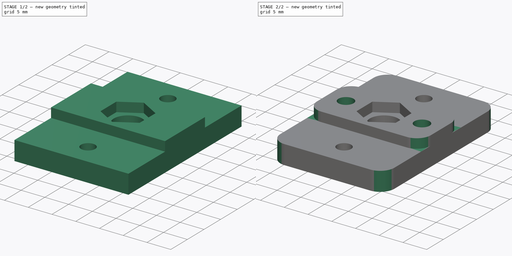
[diagram: build sequence overview — one tinted view per stage of 2, left to right]
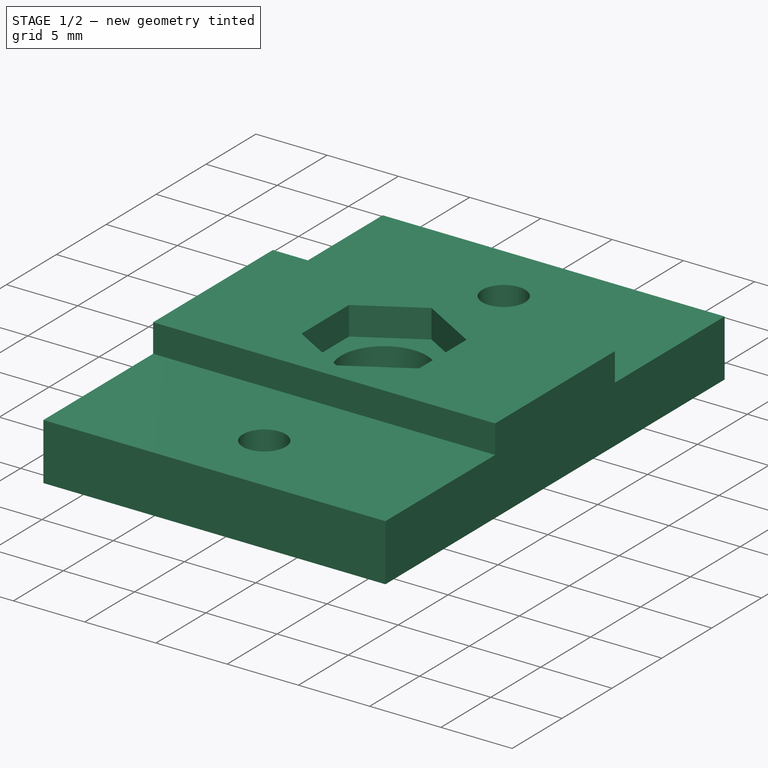
[diagram: stage 1 of 2 — iso view after this stage's code; geometry added in this stage tinted green]
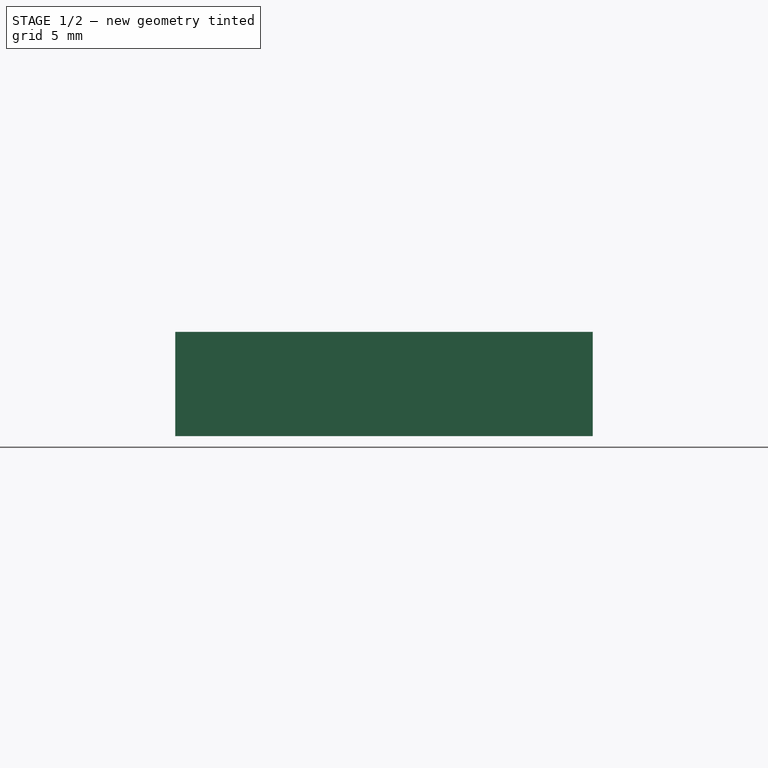
[diagram: stage 1 of 2 — front view after this stage's code; geometry added in this stage tinted green]
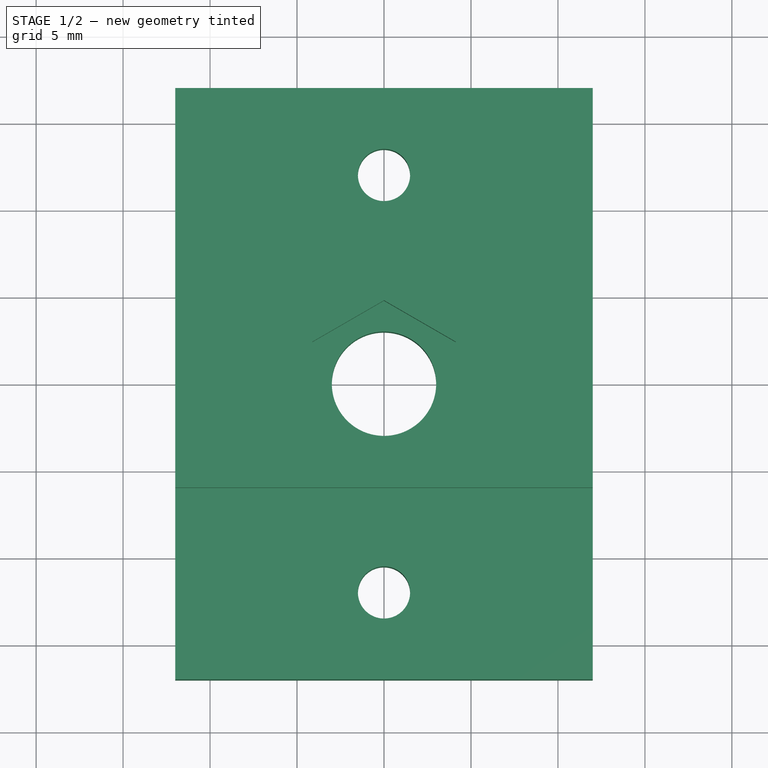
[diagram: stage 1 of 2 — top view after this stage's code; geometry added in this stage tinted green]
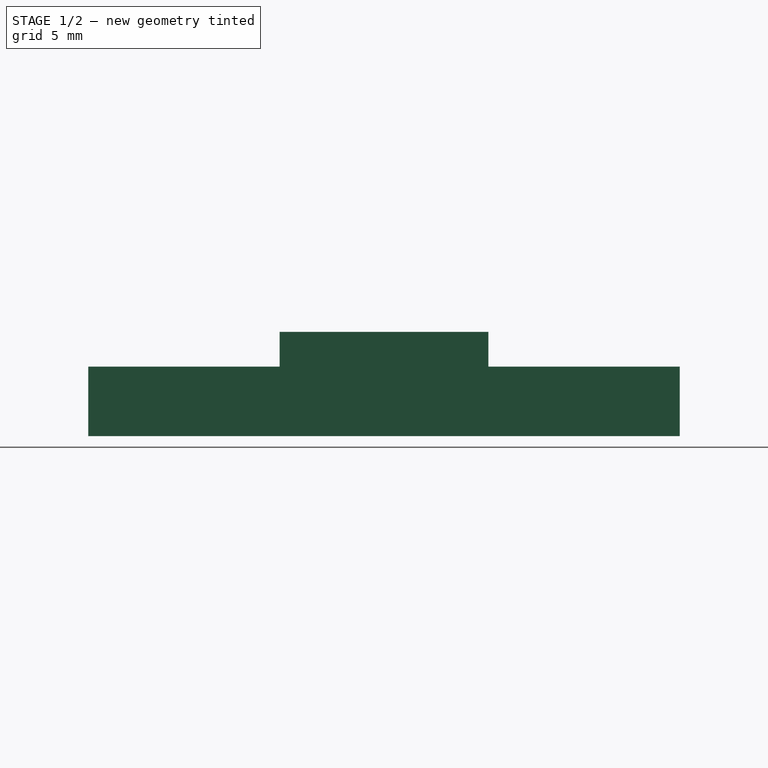
[diagram: stage 1 of 2 — right view after this stage's code; geometry added in this stage tinted green]
FCSTD DOCUMENT  (FreeCAD 0.18R14090 (Git))
Label: ZThreadedRodClip
License: All rights reserved
LicenseURL: http://en.wikipedia.org/wiki/All_rights_reserved
objects: Sketcher::SketchObject×3, PartDesign::Pad×2, PartDesign::Pocket×1, PartDesign::Fillet×1, PartDesign::Body×1, App::Part×1
note: 11 computed .brp shape members not serialized (recipe doc carries the construction recipe); baked Part::Feature solids carry a one-line shape summary decoded from their .brp

FEATURE [Sketcher::SketchObject] Sketch  label="BaseSketch"
  MapMode = 5
  Support = -> [XY_Plane001]
  sketch-geometry (7):
    g0: LineSegment StartX=-12 StartY=17 StartZ=0 EndX=12 EndY=17 EndZ=0
    g1: LineSegment StartX=12 StartY=17 StartZ=0 EndX=12 EndY=-17 EndZ=0
    g2: LineSegment StartX=12 StartY=-17 StartZ=0 EndX=-12 EndY=-17 EndZ=0
    g3: LineSegment StartX=-12 StartY=-17 StartZ=0 EndX=-12 EndY=17 EndZ=0
    g4: Circle CenterX=0 CenterY=12 CenterZ=0 NormalX=0 NormalY=0 NormalZ=1 AngleXU=0 Radius=1.5
    g5: Circle CenterX=0 CenterY=-12 CenterZ=0 NormalX=0 NormalY=0 NormalZ=1 AngleXU=0 Radius=1.5
    g6: Circle CenterX=0 CenterY=0 CenterZ=0 NormalX=0 NormalY=0 NormalZ=1 AngleXU=0 Radius=3
  constraints (17):
    c: Coincident(g0,g1)
    c: Coincident(g1,g2)
    c: Coincident(g2,g3)
    c: Coincident(g3,g0)
    c: Horizontal(g2)
    c: Vertical(g1)
    c: PointOnObject(g4,g-2)
    c: Equal(g4,g5)
    c: Symmetric(g4,g5,g-1)
    c: Distance(g4,g5) = 24
    c: Symmetric(g2,g0,g-1)
    c: Symmetric(g0,g0,g-2)
    c: Radius(g4) = 1.5
    c: Coincident(g6,g-1)
    c: Radius(g6) = 3
    c: Distance(g4,g0) = 5
    c: Distance(g2) = 24
FEATURE [PartDesign::Pad] Pad  label="BasePad"
  Length = 4
  Length2 = 100
  Profile = -> Sketch
  Reversed = true
  Type = 0
FEATURE [Sketcher::SketchObject] Sketch001  label="ScrewClipSketch"
  ExternalGeometry = -> [Sketch]
  MapMode = 5
  Support = -> [XY_Plane001]
  sketch-geometry (11):
    g0: LineSegment StartX=4.125 StartY=-2.38157 StartZ=0 EndX=4.125 EndY=2.38157 EndZ=0
    g1: LineSegment StartX=4.125 StartY=2.38157 StartZ=0 EndX=0 EndY=4.76314 EndZ=0
    g2: LineSegment StartX=0 StartY=4.76314 StartZ=0 EndX=-4.125 EndY=2.38157 EndZ=0
    g3: LineSegment StartX=-4.125 StartY=2.38157 StartZ=0 EndX=-4.125 EndY=-2.38157 EndZ=0
    g4: LineSegment StartX=-4.125 StartY=-2.38157 StartZ=0 EndX=0 EndY=-4.76314 EndZ=0
    g5: LineSegment StartX=0 StartY=-4.76314 StartZ=0 EndX=4.125 EndY=-2.38157 EndZ=0
    g6: Circle [constr] CenterX=0 CenterY=0 CenterZ=0 NormalX=0 NormalY=0 NormalZ=1 AngleXU=0 Radius=4.76314
    g7: LineSegment StartX=-12 StartY=6 StartZ=0 EndX=12 EndY=6 EndZ=0
    g8: LineSegment StartX=12 StartY=6 StartZ=0 EndX=12 EndY=-6 EndZ=0
    g9: LineSegment StartX=12 StartY=-6 StartZ=0 EndX=-12 EndY=-6 EndZ=0
    g10: LineSegment StartX=-12 StartY=-6 StartZ=0 EndX=-12 EndY=6 EndZ=0
  constraints (26):
    c: Coincident(g0,g1)
    c: Coincident(g1,g2)
    c: Coincident(g2,g3)
    c: Coincident(g3,g4)
    c: Coincident(g4,g5)
    c: Coincident(g5,g0)
    c: Equal(g0, g1-g5) x5
    c: PointOnObject(g0,g6)
    c: PointOnObject(g1,g6)
    c: PointOnObject(g2,g6)
    c: PointOnObject(g3,g6)
    c: PointOnObject(g4,g6)
    c: PointOnObject(g5,g6)
    c: Coincident(g6,g-1)
    c: Vertical(g0)
    c: Distance(g0,g2) = 8.25
    c: Coincident(g8,g9)
    c: Coincident(g9,g10)
    c: Horizontal(g9)
    c: Vertical(g8)
    c: Symmetric(g7,g9,g-1)
    c: Symmetric(g7,g7,g-2)
    c: Coincident(g7,g8)
    c: Coincident(g7,g10)
    c: PointOnObject(g7,g-3)
    c: Distance(g10) = 12
FEATURE [PartDesign::Pad] Pad001  label="ScrewClipPad"
  BaseFeature = -> Pad
  Length = 2
  Length2 = 100
  Profile = -> Sketch001
  Type = 0
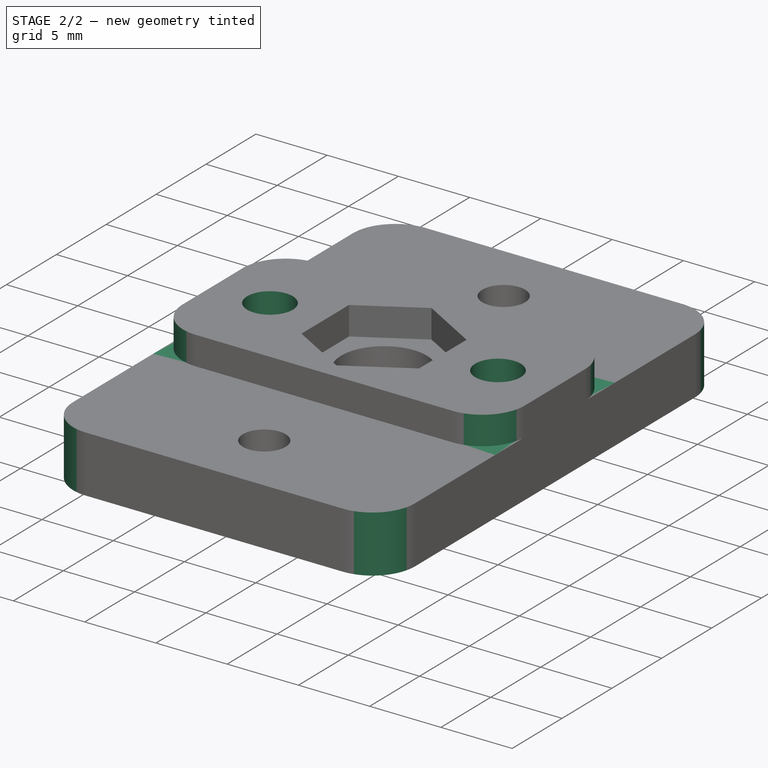
[diagram: stage 2 of 2 — iso view after this stage's code; geometry added in this stage tinted green]
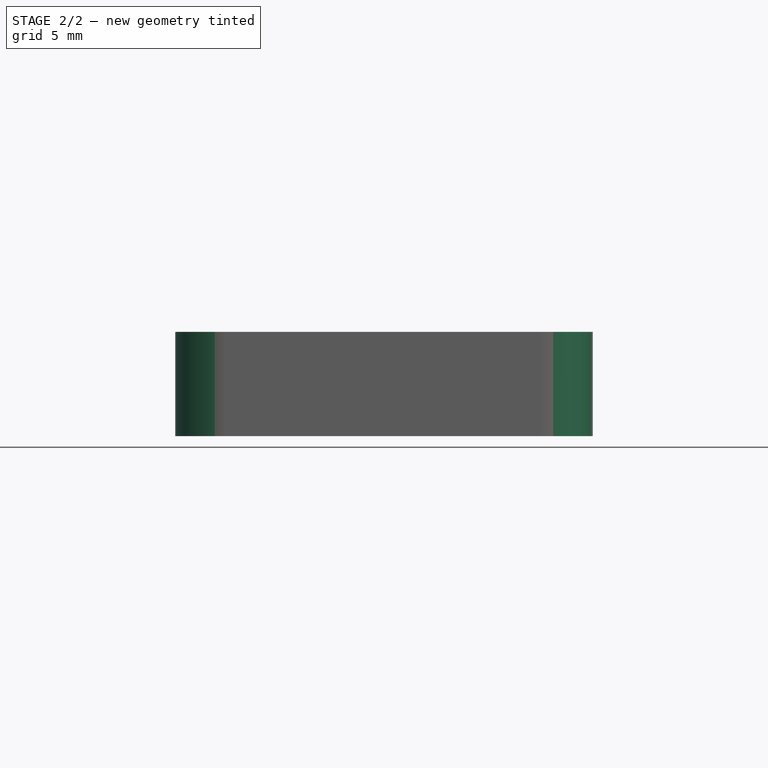
[diagram: stage 2 of 2 — front view after this stage's code; geometry added in this stage tinted green]
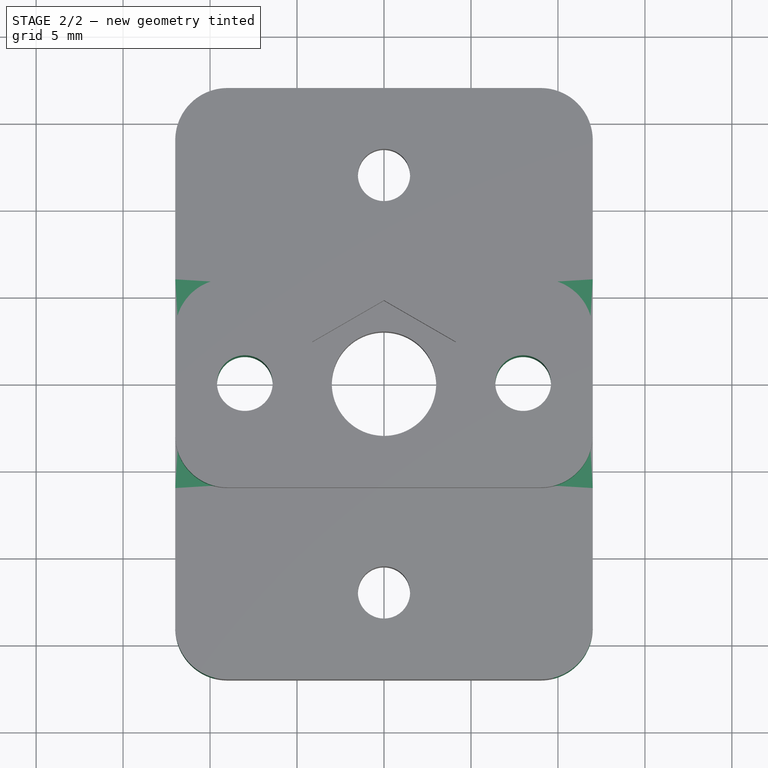
[diagram: stage 2 of 2 — top view after this stage's code; geometry added in this stage tinted green]
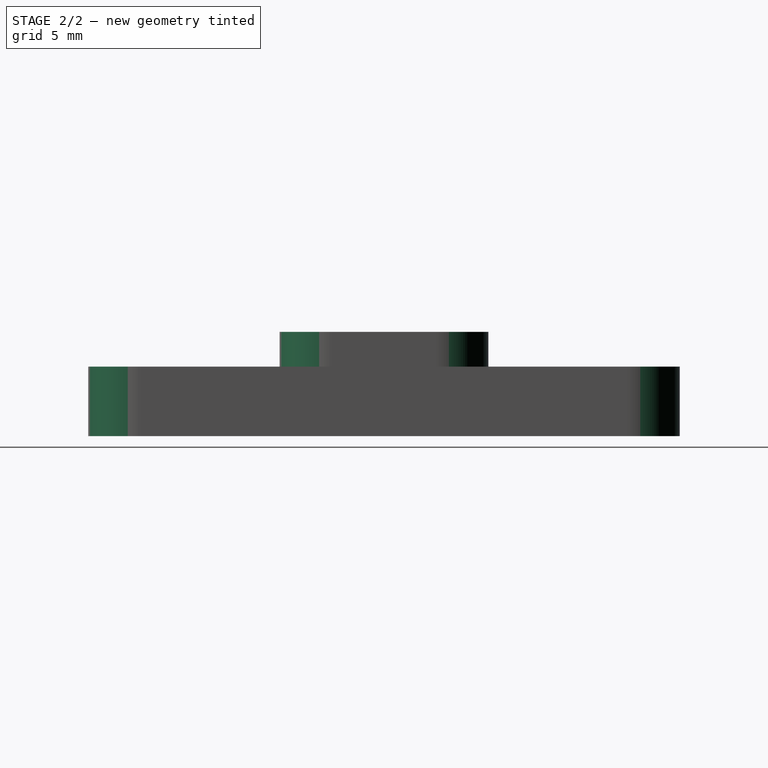
[diagram: stage 2 of 2 — right view after this stage's code; geometry added in this stage tinted green]
FEATURE [Sketcher::SketchObject] Sketch002  label="MainClipSketch"
  MapMode = 5
  Support = -> [XY_Plane001]
  sketch-geometry (2):
    g0: Circle CenterX=-8 CenterY=0 CenterZ=0 NormalX=0 NormalY=0 NormalZ=1 AngleXU=0 Radius=1.6
    g1: Circle CenterX=8 CenterY=0 CenterZ=0 NormalX=0 NormalY=0 NormalZ=1 AngleXU=0 Radius=1.6
  constraints (5):
    c: PointOnObject(g0,g-1)
    c: Symmetric(g0,g1,g-2)
    c: Radius(g0) = 1.6
    c: Equal(g0,g1)
    c: Distance(g0,g1) = 16
FEATURE [PartDesign::Pocket] Pocket  label="MainClipPocket"
  BaseFeature = -> Pad001
  Length = 5
  Length2 = 100
  Midplane = true
  Profile = -> Sketch002
  Type = 1
FEATURE [PartDesign::Fillet] Fillet
  Base = -> Pocket [Edge5,Edge13,Edge31,Edge26,Edge28,Edge29,Edge2,Edge1]
  BaseFeature = -> Pocket
  Radius = 3
FEATURE [PartDesign::Body] Body  label="ZClipBody"
  Group = -> [Sketch,Pad,Sketch001,Pad001,Sketch002,Pocket,Fillet]
  Origin = -> Origin001
  Tip = -> Fillet
FEATURE [App::Part] Part  label="ZThreadedRodClipPart"
  Group = -> [Body]
  License = CC BY 3.0
  LicenseURL = http://creativecommons.org/licenses/by/3.0/
  Origin = -> Origin
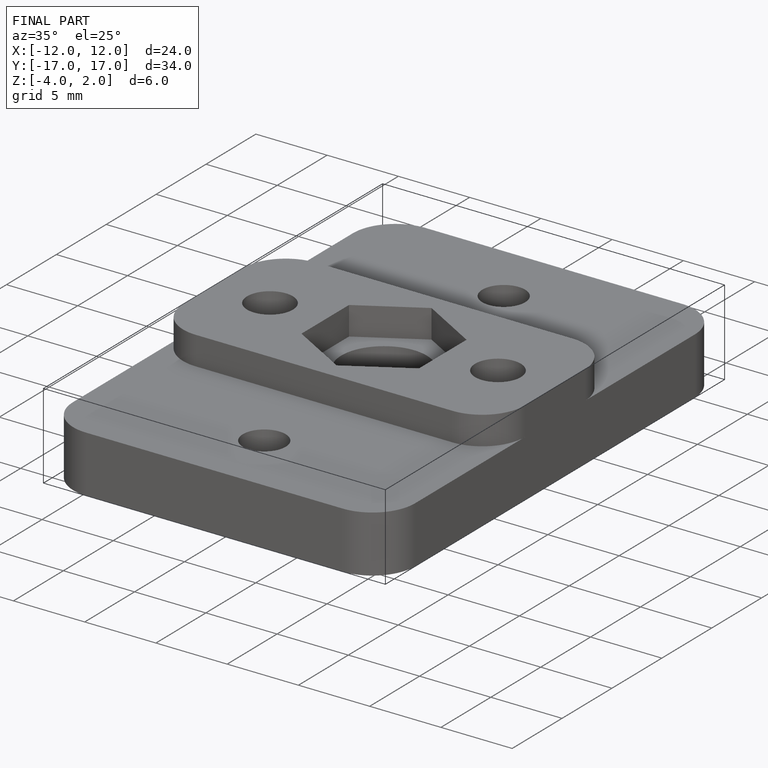
[diagram: finished part — iso view with bounding-box wireframe]
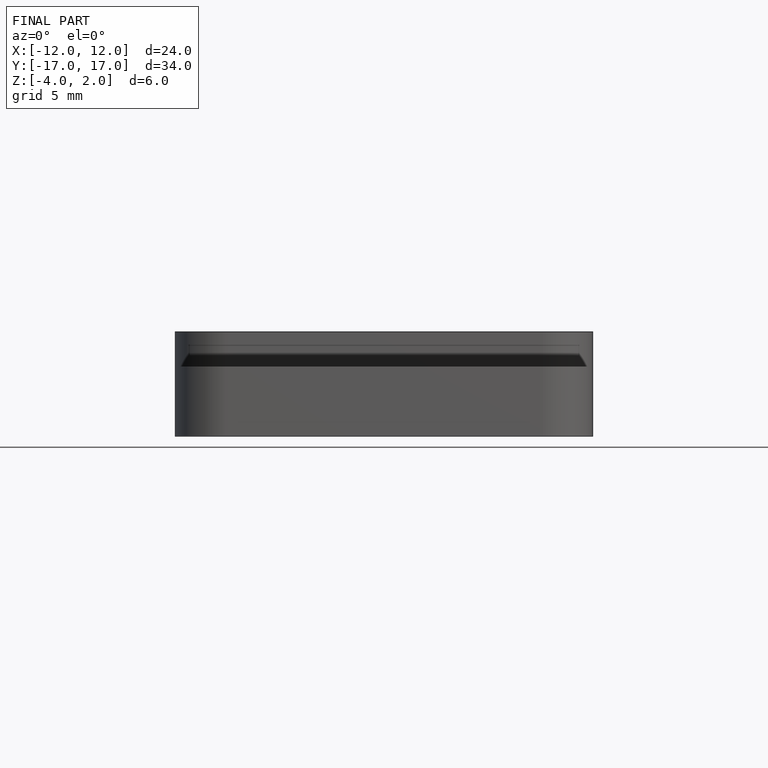
[diagram: finished part — front view with bounding-box wireframe]
